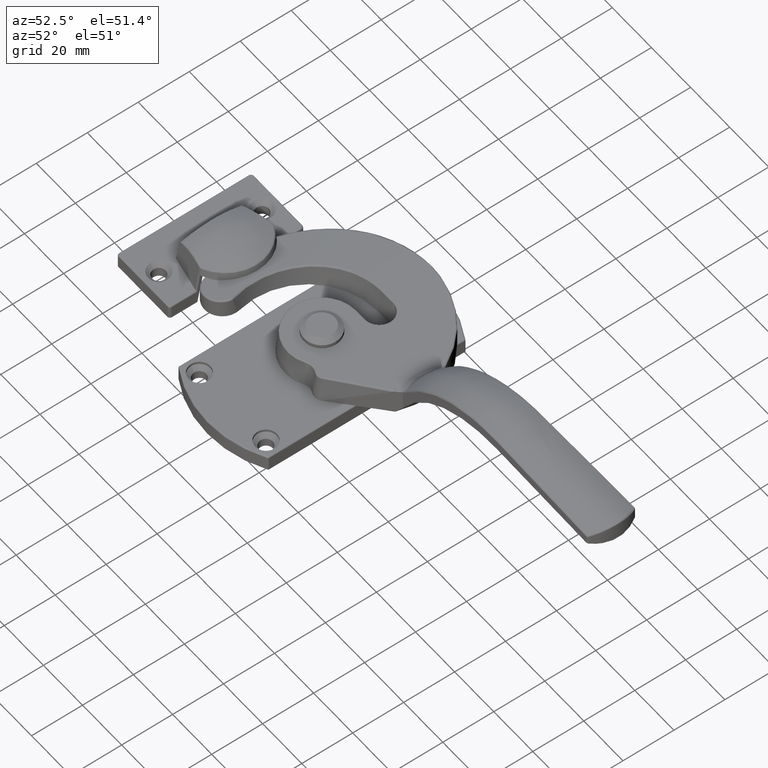
[diagram: clean part render]
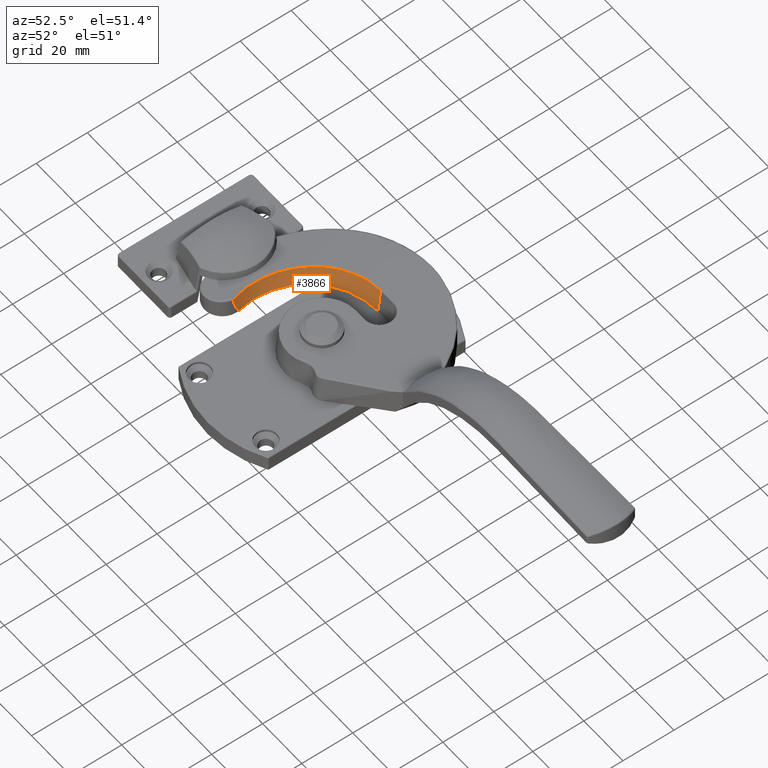
[diagram: same view with one face highlighted and labeled with its STEP entity id]
A machine part, auxiliary view. The second image highlights one B-rep face of the part: STEP entity #3866.
In plain terms, the highlighted conical surface has half-angle 5.711 deg.
Its self-contained STEP definition (entity closure, byte-faithful):
#87=B_SPLINE_CURVE_WITH_KNOTS('',3,(#6791,#6792,#6793,#6794,#6795,#6796,
#6797,#6798,#6799,#6800,#6801,#6802,#6803),.UNSPECIFIED.,.F.,.F.,(4,3,3,
3,4),(0.686760644215233,2.2520553248784,3.03474116766368,4.60011285323423,
6.16548453880479),.UNSPECIFIED.);
#92=B_SPLINE_CURVE_WITH_KNOTS('',3,(#7021,#7022,#7023,#7024,#7025,#7026),
 .UNSPECIFIED.,.F.,.F.,(4,2,4),(0.,0.00266119563086392,0.00530580039835906),
 .UNSPECIFIED.);
#109=B_SPLINE_CURVE_WITH_KNOTS('',3,(#7424,#7425,#7426,#7427,#7428,#7429,
#7430,#7431,#7432,#7433,#7434,#7435,#7436,#7437,#7438,#7439),
 .UNSPECIFIED.,.F.,.F.,(4,2,2,2,2,2,2,4),(1.26345937117759,1.32780242409303,
1.54910282810853,1.77040323212404,1.864851075048,1.95929891797196,1.99122413864398,
2.02314935931601),.UNSPECIFIED.);
#197=CONICAL_SURFACE('',#4286,27.8789307238318,0.0996686524911621);
#434=LINE('',#7296,#624);
#624=VECTOR('',#5174,9.49793956450619);
#956=FACE_OUTER_BOUND('',#1237,.T.);
#1237=EDGE_LOOP('',(#3248,#3249,#3250,#3251,#3252));
#1549=CIRCLE('',#4287,27.3789307238317);
#1808=VERTEX_POINT('',#6789);
#1809=VERTEX_POINT('',#6790);
#1830=VERTEX_POINT('',#6966);
#1855=VERTEX_POINT('',#7295);
#1863=VERTEX_POINT('',#7423);
#2260=EDGE_CURVE('',#1808,#1809,#87,.T.);
#2291=EDGE_CURVE('',#1830,#1808,#92,.T.);
#2332=EDGE_CURVE('',#1809,#1855,#434,.T.);
#2350=EDGE_CURVE('',#1830,#1863,#109,.T.);
#2351=EDGE_CURVE('',#1863,#1855,#1549,.T.);
#3248=ORIENTED_EDGE('',*,*,#2291,.F.);
#3249=ORIENTED_EDGE('',*,*,#2350,.T.);
#3250=ORIENTED_EDGE('',*,*,#2351,.T.);
#3251=ORIENTED_EDGE('',*,*,#2332,.F.);
#3252=ORIENTED_EDGE('',*,*,#2260,.F.);
#3866=ADVANCED_FACE('',(#956),#197,.F.);
#4286=AXIS2_PLACEMENT_3D('',#7422,#5207,#5208);
#4287=AXIS2_PLACEMENT_3D('',#7440,#5209,#5210);
#5174=DIRECTION('',(-5.63742190574105E-17,-0.0995037190209991,-0.995037190209989));
#5207=DIRECTION('center_axis',(0.,0.,1.));
#5208=DIRECTION('ref_axis',(8.11005393763441E-17,1.,0.));
#5209=DIRECTION('center_axis',(0.,0.,-1.));
#5210=DIRECTION('ref_axis',(0.,-1.,0.));
#6789=CARTESIAN_POINT('',(-28.4308232208213,-13.1839625852468,7.1645452274491));
#6790=CARTESIAN_POINT('',(-1.92106927616845,24.4450803097051,9.45080309705052));
#6791=CARTESIAN_POINT('Ctrl Pts',(-28.4308232207493,-13.1839625852967,7.1645452259447));
#6792=CARTESIAN_POINT('Ctrl Pts',(-30.1043000939503,-8.34353853309149,6.92363737494724));
#6793=CARTESIAN_POINT('Ctrl Pts',(-30.4385684574241,-3.03836892429321,6.87094928044146));
#6794=CARTESIAN_POINT('Ctrl Pts',(-29.3853236498302,1.97595251446231,7.02467496970255));
#6795=CARTESIAN_POINT('Ctrl Pts',(-28.8586753387649,4.48323657398899,7.10154159561231));
#6796=CARTESIAN_POINT('Ctrl Pts',(-27.9917504203076,6.91842590786456,7.22936659159259));
#6797=CARTESIAN_POINT('Ctrl Pts',(-26.8165036442899,9.19162420413531,7.39071667918114));
#6798=CARTESIAN_POINT('Ctrl Pts',(-24.4660100922545,13.7380207966768,7.71341685435822));
#6799=CARTESIAN_POINT('Ctrl Pts',(-20.8635815768649,17.6222850505179,8.17249849352132));
#6800=CARTESIAN_POINT('Ctrl Pts',(-16.5103711956717,20.2957823725255,8.56941562846615));
#6801=CARTESIAN_POINT('Ctrl Pts',(-12.1571608144785,22.9692796945332,8.96633276341098));
#6802=CARTESIAN_POINT('Ctrl Pts',(-7.04678641991258,24.4301636064031,9.30163606403048));
#6803=CARTESIAN_POINT('Ctrl Pts',(-1.92106927616845,24.4450803097051,9.45080309705052));
#6966=CARTESIAN_POINT('',(-28.4270305383404,-13.1789069546125,7.11201713108739));
#7021=CARTESIAN_POINT('Ctrl Pts',(-28.4270305383404,-13.1789069546126,7.11201713108737));
#7022=CARTESIAN_POINT('Ctrl Pts',(-28.4273320662317,-13.1806717642435,7.12070522619664));
#7023=CARTESIAN_POINT('Ctrl Pts',(-28.427799831721,-13.1819823186718,7.12945920069641));
#7024=CARTESIAN_POINT('Ctrl Pts',(-28.4290689716434,-13.1836684442482,7.14701856533817));
#7025=CARTESIAN_POINT('Ctrl Pts',(-28.4298653303617,-13.184045899064,7.15578286123408));
#7026=CARTESIAN_POINT('Ctrl Pts',(-28.4308232208296,-13.1839625855228,7.16454522745081));
#7295=CARTESIAN_POINT('',(-1.92106927616833,23.5,0.));
#7296=CARTESIAN_POINT('',(-1.92106927616851,24.5,10.));
#7422=CARTESIAN_POINT('Origin',(-1.92106927616828,-3.87893072383174,5.));
#7423=CARTESIAN_POINT('',(-28.5251501428439,-10.3464440651212,0.));
#7424=CARTESIAN_POINT('Ctrl Pts',(-28.4270305383405,-13.1789069546125,7.11201713108738));
#7425=CARTESIAN_POINT('Ctrl Pts',(-28.4192301885755,-13.1332523641445,6.88726120432346));
#7426=CARTESIAN_POINT('Ctrl Pts',(-28.4117441552443,-13.0867072505837,6.66339873495692));
#7427=CARTESIAN_POINT('Ctrl Pts',(-28.3800602003337,-12.8756733656581,5.67412059239449));
#7428=CARTESIAN_POINT('Ctrl Pts',(-28.3595161987686,-12.7010224883587,4.91991993739272));
#7429=CARTESIAN_POINT('Ctrl Pts',(-28.3313298823014,-12.312833999287,3.44707913799225));
#7430=CARTESIAN_POINT('Ctrl Pts',(-28.3230123209854,-12.1018528557363,2.72777938246385));
#7431=CARTESIAN_POINT('Ctrl Pts',(-28.3312631771805,-11.7331099480019,1.74202863264909));
#7432=CARTESIAN_POINT('Ctrl Pts',(-28.336664823911,-11.6023731338489,1.4220080107456));
#7433=CARTESIAN_POINT('Ctrl Pts',(-28.3607769233844,-11.2966930681126,0.811996251185134));
#7434=CARTESIAN_POINT('Ctrl Pts',(-28.3784016221831,-11.1255591535813,0.520061296699362));
#7435=CARTESIAN_POINT('Ctrl Pts',(-28.4242381295977,-10.8351851118377,0.218352737087209));
#7436=CARTESIAN_POINT('Ctrl Pts',(-28.4392890573364,-10.747623524267,0.142316281165404));
#7437=CARTESIAN_POINT('Ctrl Pts',(-28.4770561517172,-10.5552571992716,0.0325684937991339));
#7438=CARTESIAN_POINT('Ctrl Pts',(-28.500011981837,-10.4498497533628,-8.10029458893784E-13));
#7439=CARTESIAN_POINT('Ctrl Pts',(-28.525150142844,-10.3464440651212,-8.11573031000989E-13));
#7440=CARTESIAN_POINT('Origin',(-1.92106927616833,-3.87893072383168,0.));